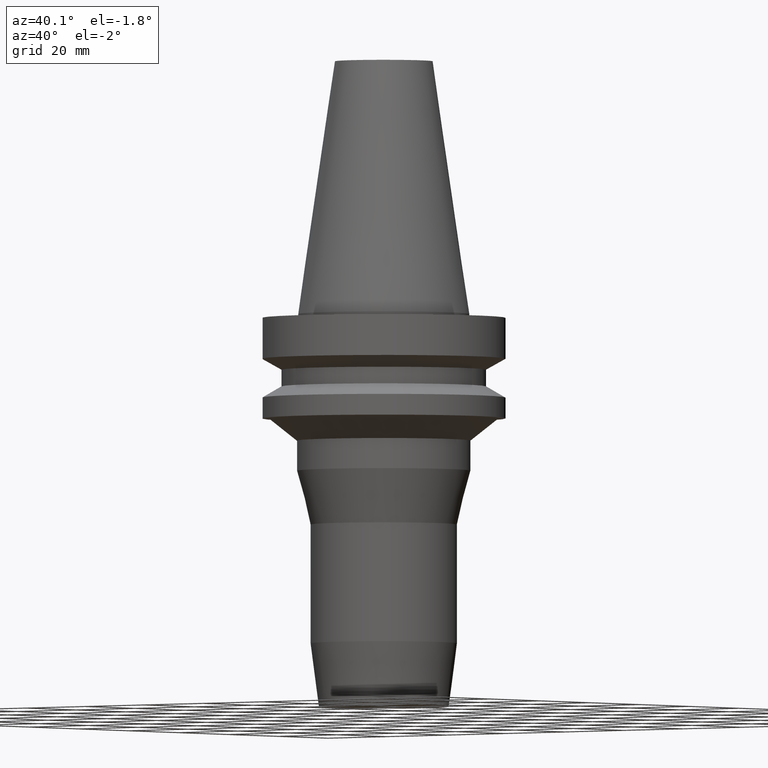
[diagram: clean part render]
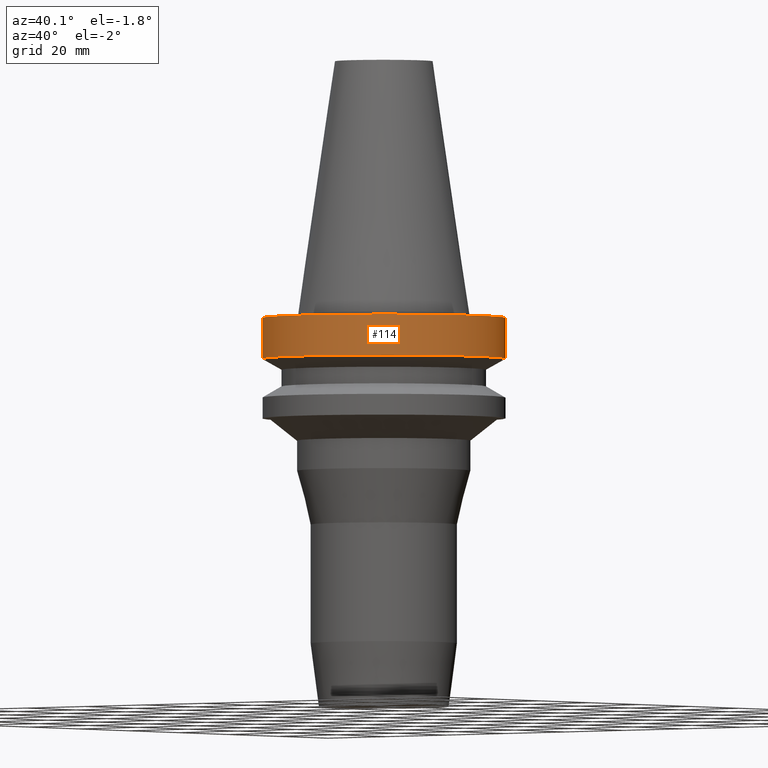
[diagram: same view with one face highlighted and labeled with its STEP entity id]
A machine part, auxiliary view. The second image highlights one B-rep face of the part: STEP entity #114.
In plain terms, the highlighted cylindrical surface (bore or boss wall) has radius 31.5 mm, axis along (0, 0, -1).
Its self-contained STEP definition (entity closure, byte-faithful):
#109=EDGE_CURVE('Unnamed[1]',#235,#235,#236,.T.);
#114=ADVANCED_FACE('Unnamed[1]',(#242,#243),#244,.T.);
#127=EDGE_CURVE('Unnamed[1]',#263,#263,#264,.T.);
#235=VERTEX_POINT('',#388);
#236=CIRCLE('',#389,31.5000000000003);
#242=FACE_BOUND('',#397,.T.);
#243=FACE_BOUND('',#398,.T.);
#244=CYLINDRICAL_SURFACE('',#399,31.5);
#263=VERTEX_POINT('',#423);
#264=CIRCLE('',#424,31.4999999999996);
#388=CARTESIAN_POINT('',(7.08182973902924E-016,31.5000000000004,-11.5655056526664));
#389=AXIS2_PLACEMENT_3D('',#532,#533,#534);
#397=EDGE_LOOP('',(#539));
#398=EDGE_LOOP('',(#540));
#399=AXIS2_PLACEMENT_3D('',#541,#542,#543);
#423=CARTESIAN_POINT('',(6.12323399573568E-017,31.4999999999997,-0.999999999999825));
#424=AXIS2_PLACEMENT_3D('',#564,#565,#566);
#532=CARTESIAN_POINT('',(7.08182973902924E-016,8.67163659478059E-014,-11.5655056526664));
#533=DIRECTION('',(6.12323399573677E-017,1.22464679914769E-016,-1.0));
#534=DIRECTION('',(-1.23259516440782E-032,1.0,1.22464679914769E-016));
#539=ORIENTED_EDGE('',*,*,#109,.F.);
#540=ORIENTED_EDGE('',*,*,#127,.T.);
#541=CARTESIAN_POINT('',(3.84707656930141E-016,8.60694153138603E-014,-6.28275282633309));
#542=DIRECTION('',(6.12323399573677E-017,1.2246467991477E-016,-1.0));
#543=DIRECTION('',(-1.23259516440783E-032,1.0,1.2246467991477E-016));
#564=CARTESIAN_POINT('',(6.12323399573572E-017,8.54224646799147E-014,-0.999999999999829));
#565=DIRECTION('',(6.12323399573677E-017,1.22464679914772E-016,-1.0));
#566=DIRECTION('',(-1.23259516440785E-032,1.0,1.22464679914772E-016));